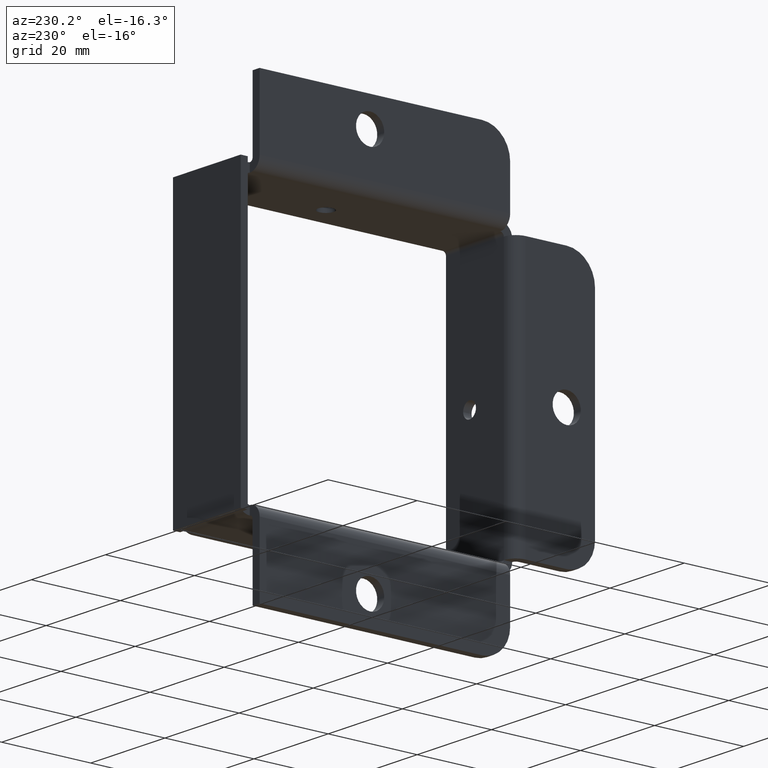
[diagram: clean part render]
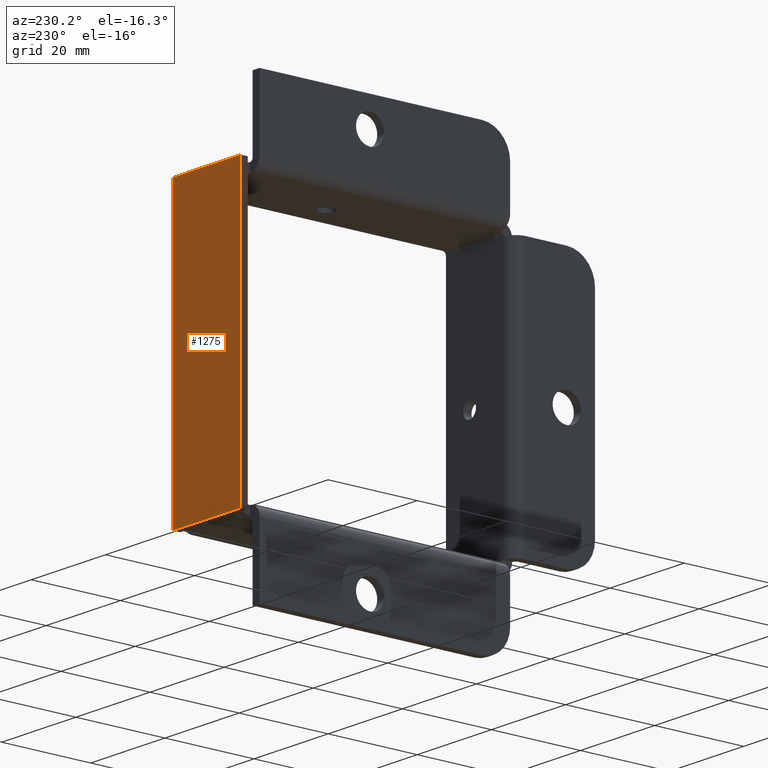
[diagram: same view with one face highlighted and labeled with its STEP entity id]
A machine part, auxiliary view. The second image highlights one B-rep face of the part: STEP entity #1275.
In plain terms, the highlighted planar face has unit normal (0, 1, -0).
Its self-contained STEP definition (entity closure, byte-faithful):
#189=FACE_OUTER_BOUND('',#283,.T.);
#283=EDGE_LOOP('',(#1063,#1064,#1065,#1066));
#383=LINE('',#2081,#493);
#387=LINE('',#2089,#497);
#390=LINE('',#2095,#500);
#393=LINE('',#2100,#503);
#493=VECTOR('',#1748,0.71875);
#497=VECTOR('',#1754,2.5);
#500=VECTOR('',#1759,0.71875);
#503=VECTOR('',#1764,2.5);
#589=VERTEX_POINT('',#2079);
#590=VERTEX_POINT('',#2080);
#593=VERTEX_POINT('',#2088);
#595=VERTEX_POINT('',#2094);
#743=EDGE_CURVE('',#589,#590,#383,.T.);
#747=EDGE_CURVE('',#590,#593,#387,.T.);
#750=EDGE_CURVE('',#593,#595,#390,.T.);
#753=EDGE_CURVE('',#595,#589,#393,.T.);
#1063=ORIENTED_EDGE('',*,*,#743,.F.);
#1064=ORIENTED_EDGE('',*,*,#753,.F.);
#1065=ORIENTED_EDGE('',*,*,#750,.F.);
#1066=ORIENTED_EDGE('',*,*,#747,.F.);
#1121=PLANE('',#1403);
#1275=ADVANCED_FACE('',(#189),#1121,.T.);
#1403=AXIS2_PLACEMENT_3D('',#2102,#1766,#1767);
#1748=DIRECTION('',(0.,-1.,0.));
#1754=DIRECTION('',(-1.,-1.22386790116159E-16,0.));
#1759=DIRECTION('',(0.,1.,0.));
#1764=DIRECTION('',(1.,0.,0.));
#1766=DIRECTION('center_axis',(0.,0.,1.));
#1767=DIRECTION('ref_axis',(1.,0.,0.));
#2079=CARTESIAN_POINT('',(1.25,0.359375,0.062));
#2080=CARTESIAN_POINT('',(1.25,-0.359375,0.062));
#2081=CARTESIAN_POINT('',(1.25,0.359375,0.062));
#2088=CARTESIAN_POINT('',(-1.25,-0.359375,0.062));
#2089=CARTESIAN_POINT('',(1.25,-0.359375,0.062));
#2094=CARTESIAN_POINT('',(-1.25,0.359375,0.062));
#2095=CARTESIAN_POINT('',(-1.25,-0.359375,0.062));
#2100=CARTESIAN_POINT('',(-1.25,0.359375,0.062));
#2102=CARTESIAN_POINT('Origin',(-6.55643518479423E-17,-2.29195536527582E-16,
0.062));